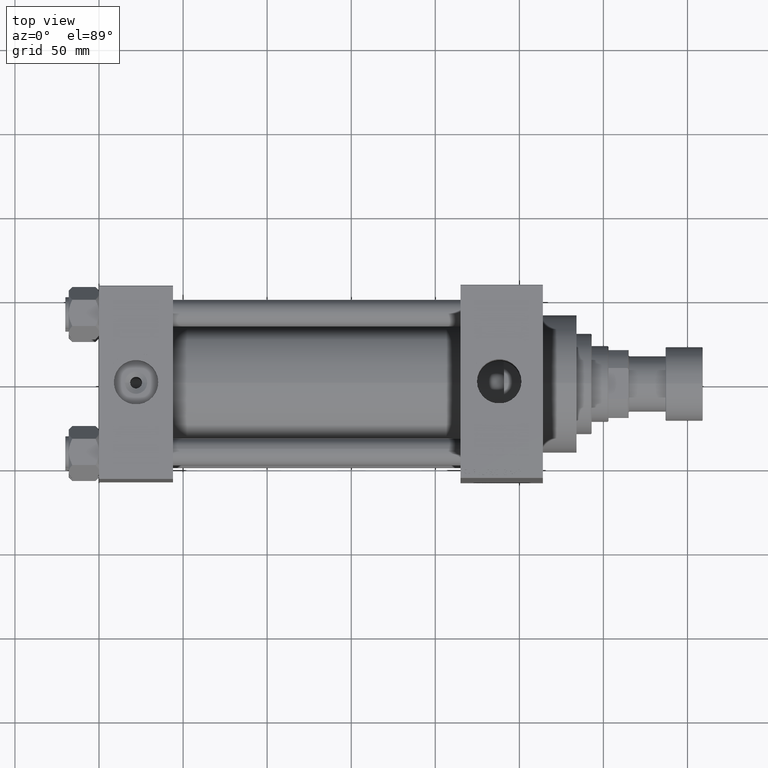
[diagram: clean part render]
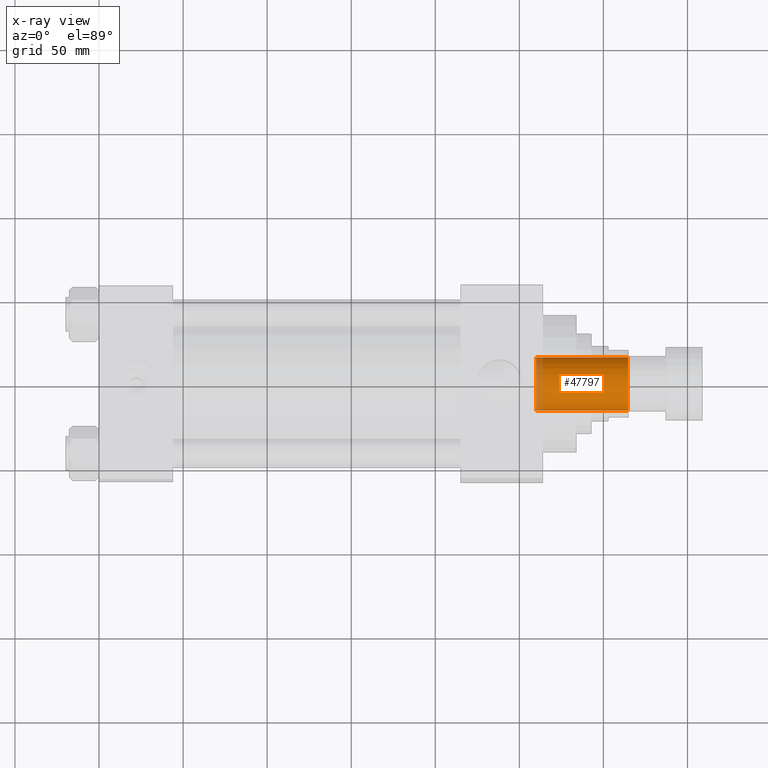
[diagram: x-ray — body ghosted, one internal face saturated and labeled with its STEP entity id]
A machine part, top view, then the same camera in x-ray: the body is ghosted and one INTERNAL B-rep face — a face not visible from any outside direction — is saturated and labeled: STEP entity #47797.
In plain terms, the highlighted cylindrical surface (edge-blend (fillet) strip) has radius 15.75 mm, axis along (1, 0, 0).
Its self-contained STEP definition (entity closure, byte-faithful):
#92 = CARTESIAN_POINT ( 'NONE',  ( 0.000000000000000000, 0.000000000000000000, 270.6999999999999886 ) ) ;
#499 = ORIENTED_EDGE ( 'NONE', *, *, #3537, .T. ) ;
#3358 = VERTEX_POINT ( 'NONE', #17300 ) ;
#3537 = EDGE_CURVE ( 'NONE', #45339, #27151, #26098, .T. ) ;
#4084 = DIRECTION ( 'NONE',  ( -0.000000000000000000, -0.000000000000000000, 1.000000000000000000 ) ) ;
#4799 = DIRECTION ( 'NONE',  ( -0.000000000000000000, -0.000000000000000000, 1.000000000000000000 ) ) ;
#8243 = CIRCLE ( 'NONE', #20732, 15.74999999999999289 ) ;
#9262 = CARTESIAN_POINT ( 'NONE',  ( 0.000000000000000000, 0.000000000000000000, 216.0000000000000284 ) ) ;
#11413 = DIRECTION ( 'NONE',  ( 1.000000000000000000, 0.000000000000000000, 0.000000000000000000 ) ) ;
#13539 = DIRECTION ( 'NONE',  ( -0.000000000000000000, -0.000000000000000000, 1.000000000000000000 ) ) ;
#14982 = DIRECTION ( 'NONE',  ( 0.000000000000000000, 0.000000000000000000, 1.000000000000000000 ) ) ;
#17097 = AXIS2_PLACEMENT_3D ( 'NONE', #9262, #38820, #46409 ) ;
#17300 = CARTESIAN_POINT ( 'NONE',  ( 15.74999999999998934, 0.000000000000000000, 216.0000000000000284 ) ) ;
#18417 = CARTESIAN_POINT ( 'NONE',  ( 15.74999999999999289, 0.000000000000000000, 270.6999999999999886 ) ) ;
#18733 = CARTESIAN_POINT ( 'NONE',  ( -15.74999999999999289, 1.928818708657080556E-15, 271.0000000000000000 ) ) ;
#19690 = CYLINDRICAL_SURFACE ( 'NONE', #32175, 15.74999999999999289 ) ;
#20732 = AXIS2_PLACEMENT_3D ( 'NONE', #92, #14982, #26230 ) ;
#21158 = ORIENTED_EDGE ( 'NONE', *, *, #29721, .T. ) ;
#23140 = CARTESIAN_POINT ( 'NONE',  ( 0.000000000000000000, 0.000000000000000000, 271.0000000000000000 ) ) ;
#23824 = LINE ( 'NONE', #38697, #47385 ) ;
#24109 = VECTOR ( 'NONE', #4084, 1000.000000000000000 ) ;
#24716 = VERTEX_POINT ( 'NONE', #18417 ) ;
#24824 = CIRCLE ( 'NONE', #17097, 15.74999999999998934 ) ;
#26098 = LINE ( 'NONE', #18733, #24109 ) ;
#26230 = DIRECTION ( 'NONE',  ( 1.000000000000000000, 0.000000000000000000, 0.000000000000000000 ) ) ;
#27151 = VERTEX_POINT ( 'NONE', #47907 ) ;
#29721 = EDGE_CURVE ( 'NONE', #27151, #24716, #8243, .T. ) ;
#32024 = EDGE_LOOP ( 'NONE', ( #33964, #499, #21158, #39299 ) ) ;
#32150 = CARTESIAN_POINT ( 'NONE',  ( -15.74999999999998934, 1.928818708657080161E-15, 216.0000000000000284 ) ) ;
#32175 = AXIS2_PLACEMENT_3D ( 'NONE', #23140, #4799, #11413 ) ;
#33060 = EDGE_CURVE ( 'NONE', #3358, #24716, #23824, .T. ) ;
#33964 = ORIENTED_EDGE ( 'NONE', *, *, #37569, .F. ) ;
#37569 = EDGE_CURVE ( 'NONE', #45339, #3358, #24824, .T. ) ;
#38697 = CARTESIAN_POINT ( 'NONE',  ( 15.74999999999999289, 0.000000000000000000, 271.0000000000000000 ) ) ;
#38820 = DIRECTION ( 'NONE',  ( -0.000000000000000000, -0.000000000000000000, 1.000000000000000000 ) ) ;
#39299 = ORIENTED_EDGE ( 'NONE', *, *, #33060, .F. ) ;
#45339 = VERTEX_POINT ( 'NONE', #32150 ) ;
#45601 = FACE_OUTER_BOUND ( 'NONE', #32024, .T. ) ;
#46409 = DIRECTION ( 'NONE',  ( 1.000000000000000000, 0.000000000000000000, 0.000000000000000000 ) ) ;
#47385 = VECTOR ( 'NONE', #13539, 1000.000000000000000 ) ;
#47797 = ADVANCED_FACE ( 'NONE', ( #45601 ), #19690, .F. ) ;
#47907 = CARTESIAN_POINT ( 'NONE',  ( -15.74999999999999289, 1.928818708657080556E-15, 270.6999999999999886 ) ) ;